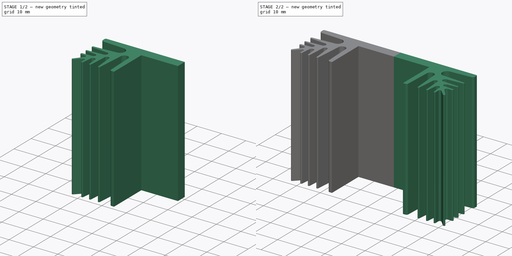
[diagram: build sequence overview — one tinted view per stage of 2, left to right]
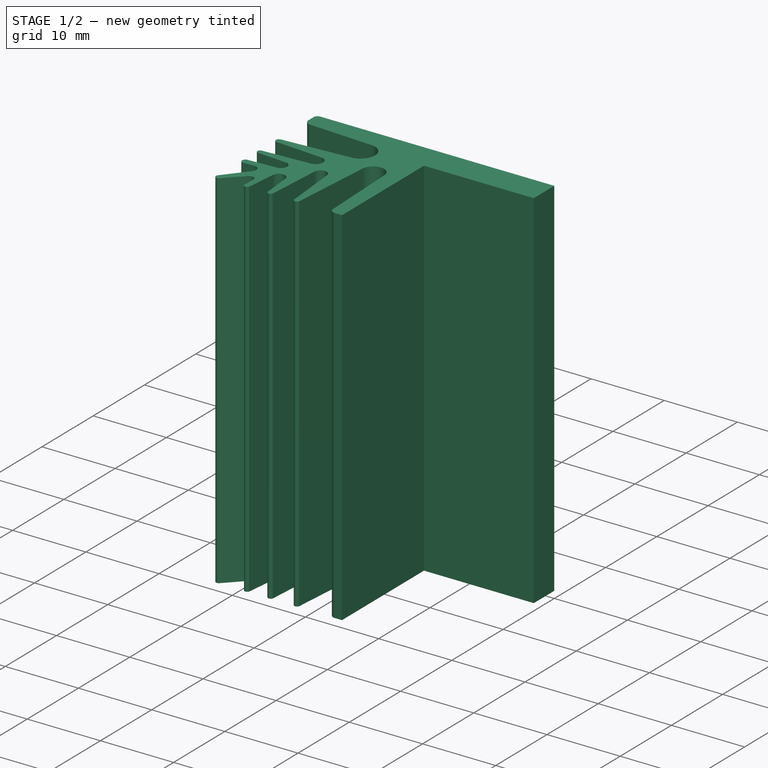
[diagram: stage 1 of 2 — iso view after this stage's code; geometry added in this stage tinted green]
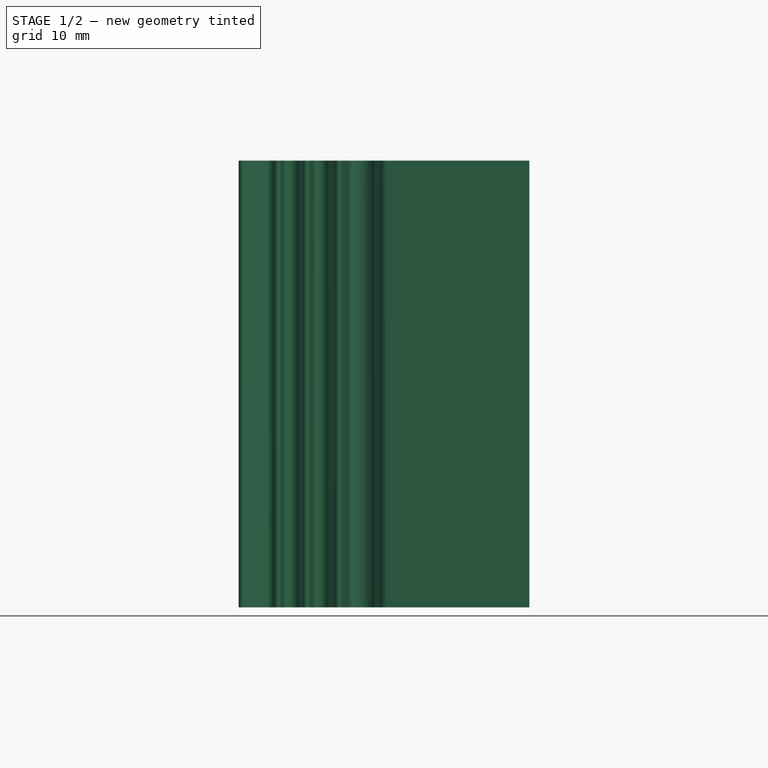
[diagram: stage 1 of 2 — front view after this stage's code; geometry added in this stage tinted green]
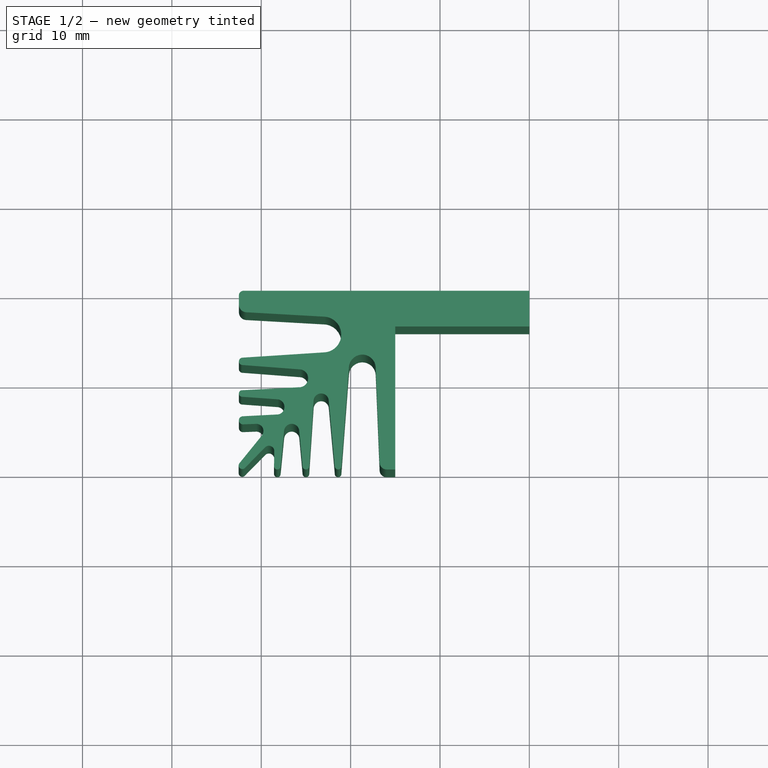
[diagram: stage 1 of 2 — top view after this stage's code; geometry added in this stage tinted green]
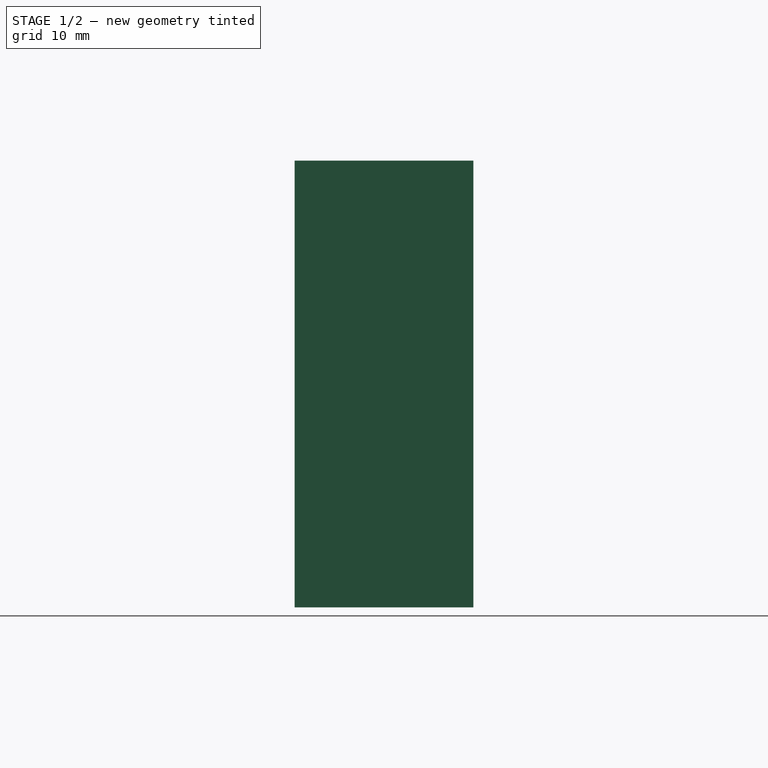
[diagram: stage 1 of 2 — right view after this stage's code; geometry added in this stage tinted green]
FCSTD DOCUMENT  (FreeCAD 0.16R6712 (Git))
Label: SK48-50-SA-3
License: All rights reserved
LicenseURL: http://en.wikipedia.org/wiki/All_rights_reserved
objects: Image::ImagePlane×1, Sketcher::SketchObject×1, PartDesign::Pad×1, PartDesign::Mirrored×1
note: 4 computed .brp shape members not serialized (recipe doc carries the construction recipe); baked Part::Feature solids carry a one-line shape summary decoded from their .brp

FEATURE [Image::ImagePlane] ImagePlane
  Placement = pos=(0,-10,0) rot=(0,0,1;3.14159rad)
  XSize = 65
  YSize = 20
FEATURE [Sketcher::SketchObject] Sketch
  sketch-geometry (50):
    g0: LineSegment [constr] StartX=-32.5 StartY=-20 StartZ=0 EndX=0 EndY=-20 EndZ=0
    g1: GeomPoint [constr] X=-32.5 Y=-14.5 Z=0
    g2: GeomPoint [constr] X=-32.5 Y=-11.5 Z=0
    g3: GeomPoint [constr] X=-32.5 Y=-7.9 Z=0
    g4: GeomPoint [constr] X=-28.2 Y=-20 Z=0
    g5: GeomPoint [constr] X=-25 Y=-20 Z=0
    g6: GeomPoint [constr] X=-21.4 Y=-20 Z=0
    g7: GeomPoint [constr] X=-15 Y=-20 Z=0
    g8: LineSegment StartX=0 StartY=0 StartZ=0 EndX=0 EndY=-4 EndZ=0
    g9: LineSegment StartX=0 StartY=-4 StartZ=0 EndX=-15 EndY=-4 EndZ=0
    g10: LineSegment StartX=-15 StartY=-4 StartZ=0 EndX=-15 EndY=-20 EndZ=0
    g11: ArcOfCircle CenterX=-18.69 CenterY=-8.64822 CenterZ=0 NormalX=0 NormalY=0 NormalZ=1 Radius=1.5 StartAngle=0.0405858 EndAngle=3.06575
    g12: ArcOfCircle CenterX=-23.29 CenterY=-12.3482 CenterZ=0 NormalX=0 NormalY=0 NormalZ=1 Radius=0.85 StartAngle=0.0910494 EndAngle=3.07533
    g13: ArcOfCircle CenterX=-26.59 CenterY=-15.7482 CenterZ=0 NormalX=0 NormalY=0 NormalZ=1 Radius=0.85 StartAngle=0.0927035 EndAngle=3.04332
    g14: ArcOfCircle CenterX=-29.14 CenterY=-17.9482 CenterZ=0 NormalX=0 NormalY=0 NormalZ=1 Radius=0.6 StartAngle=6.26421 EndAngle=8.64911
    g15: ArcOfCircle CenterX=-30.55 CenterY=-15.6982 CenterZ=0 NormalX=0 NormalY=0 NormalZ=1 Radius=0.8 StartAngle=5.60683 EndAngle=7.8895
    g16: ArcOfCircle CenterX=-28.25 CenterY=-12.9982 CenterZ=0 NormalX=0 NormalY=0 NormalZ=1 Radius=0.85 StartAngle=4.76436 EndAngle=7.78221
    g17: ArcOfCircle CenterX=-25.75 CenterY=-9.79822 CenterZ=0 NormalX=0 NormalY=0 NormalZ=1 Radius=1 StartAngle=4.76467 EndAngle=7.77804
    g18: ArcOfCircle CenterX=-23.05 CenterY=-4.89822 CenterZ=0 NormalX=0 NormalY=0 NormalZ=1 Radius=2 StartAngle=4.77701 EndAngle=7.79755
    g19: LineSegment StartX=-15 StartY=-20 StartZ=0 EndX=-15.9627 EndY=-20 EndZ=0
    g20: LineSegment StartX=-16.7588 StartY=-19.2355 StartZ=0 EndX=-17.1912 EndY=-8.58736 EndZ=0
    g21: ArcOfCircle CenterX=-15.9627 CenterY=-19.2032 CenterZ=0 NormalX=0 NormalY=0 NormalZ=1 Radius=0.796787 StartAngle=3.18218 EndAngle=4.71239
    g22: LineSegment StartX=-21.031 StartY=-19.658 StartZ=0 EndX=-20.1857 EndY=-8.53456 EndZ=0
    g23: LineSegment StartX=-21.7686 StartY=-19.6636 StartZ=0 EndX=-22.4435 EndY=-12.2709 EndZ=0
    g24: ArcOfCircle CenterX=-21.4 CenterY=-19.6299 CenterZ=0 NormalX=0 NormalY=0 NormalZ=1 Radius=0.370093 StartAngle=3.23264 EndAngle=6.20734
    g25: LineSegment StartX=-24.6264 StartY=-19.6504 StartZ=0 EndX=-24.1381 EndY=-12.2919 EndZ=0
    g26: LineSegment StartX=-25.3728 StartY=-19.6602 StartZ=0 EndX=-25.7436 EndY=-15.6695 EndZ=0
    g27: ArcOfCircle CenterX=-25 CenterY=-19.6256 CenterZ=0 NormalX=0 NormalY=0 NormalZ=1 Radius=0.374404 StartAngle=3.23426 EndAngle=6.21693
    g28: LineSegment StartX=-27.8301 StartY=-19.6647 StartZ=0 EndX=-27.4359 EndY=-15.6648 EndZ=0
    g29: LineSegment StartX=-28.5716 StartY=-19.6212 StartZ=0 EndX=-28.5401 EndY=-17.9596 EndZ=0
    g30: ArcOfCircle CenterX=-28.2 CenterY=-19.6283 CenterZ=0 NormalX=0 NormalY=0 NormalZ=1 Radius=0.371708 StartAngle=3.12262 EndAngle=6.18495
    g31: LineSegment StartX=-31.8301 StartY=-19.8343 StartZ=0 EndX=-29.5684 EndY=-17.5281 EndZ=0
    g32: LineSegment StartX=-32.4354 StartY=-19.2943 StartZ=0 EndX=-29.9261 EndY=-16.199 EndZ=0
    g33: LineSegment StartX=-32.0309 StartY=-14.9522 StartZ=0 EndX=-30.5784 EndY=-14.8987 EndZ=0
    g34: LineSegment StartX=-32.071 StartY=-14.0481 StartZ=0 EndX=-28.2058 EndY=-13.8471 EndZ=0
    g35: LineSegment StartX=-32.1604 StartY=-11.8649 StartZ=0 EndX=-28.189 EndY=-12.1504 EndZ=0
    g36: LineSegment StartX=-32.1533 StartY=-11.1347 StartZ=0 EndX=-25.6977 EndY=-10.7969 EndZ=0
    g37: LineSegment StartX=-32.1194 StartY=-8.31069 StartZ=0 EndX=-25.6741 EndY=-8.80111 EndZ=0
    g38: LineSegment StartX=-32.1147 StartY=-7.48899 StartZ=0 EndX=-22.9208 EndY=-6.89405 EndZ=0
    g39: LineSegment StartX=-31.6837 StartY=-2.40726 StartZ=0 EndX=-22.9372 EndY=-2.90141 EndZ=0
    g40: LineSegment StartX=-32.5 StartY=-1.54358 StartZ=0 EndX=-32.5 EndY=-0.517038 EndZ=0
    g41: LineSegment StartX=-31.983 StartY=0 StartZ=0 EndX=0 EndY=0 EndZ=0
    g42: LineSegment [constr] StartX=-32.5 StartY=-7.9 StartZ=0 EndX=-32.5 EndY=-20 EndZ=0
    g43: ArcOfCircle CenterX=-32.12 CenterY=-19.55 CenterZ=0 NormalX=0 NormalY=0 NormalZ=1 Radius=0.406041 StartAngle=2.46037 EndAngle=5.50752
    g44: ArcOfCircle CenterX=-32.0475 CenterY=-14.5 CenterZ=0 NormalX=0 NormalY=0 NormalZ=1 Radius=0.452465 StartAngle=1.62277 EndAngle=4.74916
    g45: ArcOfCircle CenterX=-32.1342 CenterY=-11.5 CenterZ=0 NormalX=0 NormalY=0 NormalZ=1 Radius=0.365846 StartAngle=1.62308 EndAngle=4.64062
    g46: ArcOfCircle CenterX=-32.0881 CenterY=-7.9 CenterZ=0 NormalX=0 NormalY=0 NormalZ=1 Radius=0.411874 StartAngle=1.63542 EndAngle=4.63645
    g47: ArcOfCircle CenterX=-31.6349 CenterY=-1.54358 CenterZ=0 NormalX=0 NormalY=0 NormalZ=1 Radius=0.865054 StartAngle=3.14159 EndAngle=4.65595
    g48: ArcOfCircle CenterX=-31.983 CenterY=-0.517038 CenterZ=0 NormalX=0 NormalY=0 NormalZ=1 Radius=0.517038 StartAngle=1.5708 EndAngle=3.14159
    g49: LineSegment [constr] StartX=-32.5 StartY=-1.54358 StartZ=0 EndX=-32.5 EndY=-7.9 EndZ=0
  constraints (120):
    c: Horizontal(g0)
    c: DistanceX(g0,g0) = 32.5
    c: PointOnObject(g4,g0)
    c: PointOnObject(g5,g0)
    c: PointOnObject(g6,g0)
    c: PointOnObject(g7,g0)
    c: DistanceX(g7,g0) = 15
    c: DistanceX(g6,g0) = 21.4
    c: DistanceX(g5,g0) = 25
    c: DistanceX(g4,g0) = 28.2
    c: Coincident(g-1,g8)
    c: Vertical(g8)
    c: Coincident(g8,g9)
    c: Horizontal(g9)
    c: Coincident(g9,g10)
    c: Coincident(g10,g7)
    c: Vertical(g10)
    c: DistanceY(g8,g8) = 4
    c: Radius(g11) = 1.5
    c: Radius(g15) = 0.8
    c: Radius(g14) = 0.6
    c: Radius(g13) = 0.85
    c: Radius(g12) = 0.85
    c: Radius(g18) = 2
    c: Radius(g17) = 1
    c: Radius(g16) = 0.85
    c: DistanceX(g18,g11) = 4.36
    c: DistanceY(g11,g18) = 3.75
    c: DistanceY(g17,g18) = 4.9
    c: DistanceX(g17,g18) = 2.7
    c: DistanceX(g12,g11) = 4.6
    c: DistanceY(g12,g11) = 3.7
    c: DistanceY(g16,g17) = 3.2
    c: DistanceX(g16,g17) = 2.5
    c: DistanceY(g13,g12) = 3.4
    c: DistanceX(g13,g12) = 3.3
    c: DistanceX(g15,g16) = 2.3
    c: DistanceY(g15,g16) = 2.7
    c: DistanceY(g14,g13) = 2.2
    c: DistanceX(g14,g13) = 2.55
    c: Coincident(g19,g7)
    c: Tangent(g20,g11)
    c: Tangent(g19,g21) = 1.5708
    c: Tangent(g20,g21) = 1.5708
    c: Tangent(g22,g11)
    c: Tangent(g23,g12)
    c: Tangent(g23,g24) = 1.5708
    c: Tangent(g22,g24) = -1.5708
    c: PointOnObject(g6,g24)
    c: DistanceX(g24,g6) = 0
    c: Tangent(g25,g12)
    c: Tangent(g26,g27) = 1.5708
    c: Tangent(g25,g27) = -1.5708
    c: DistanceX(g27,g5) = 0
    c: PointOnObject(g5,g27)
    c: Tangent(g29,g14)
    c: Tangent(g29,g30) = 1.5708
    c: Tangent(g28,g30) = -1.5708
    c: DistanceX(g30,g4) = 0
    c: PointOnObject(g4,g30)
    c: Tangent(g31,g14)
    c: Tangent(g34,g16)
    c: Tangent(g35,g16)
    c: Tangent(g36,g17)
    c: Tangent(g37,g17)
    c: Tangent(g38,g18)
    c: Tangent(g39,g18)
    c: Coincident(g41,g-1)
    c: Coincident(g42,g3)
    c: Vertical(g42)
    c: PointOnObject(g2,g42)
    c: PointOnObject(g1,g42)
    c: Coincident(g42,g0)
    c: DistanceX(g3,g-1) = 32.5
    c: Vertical(g40)
    c: Tangent(g31,g43) = -1.5708
    c: Tangent(g32,g43) = 1.5708
    c: Tangent(g33,g44) = -1.5708
    c: Tangent(g34,g44) = 1.5708
    c: Tangent(g35,g45) = -1.5708
    c: Tangent(g36,g45) = 1.5708
    c: Tangent(g37,g46) = -1.5708
    c: Tangent(g38,g46) = 1.5708
    c: Tangent(g39,g47) = -1.5708
    c: Tangent(g40,g47) = 1.5708
    c: PointOnObject(g3,g46)
    c: PointOnObject(g2,g45)
    c: PointOnObject(g1,g44)
    c: DistanceX(g0,g43) = 0.38
    c: DistanceY(g0,g43) = 0.45
    c: DistanceY(g44,g1) = 0
    c: DistanceY(g2,g45) = 0
    c: DistanceY(g46,g3) = 0
    c: Coincident(g18,g38)
    c: Coincident(g18,g39)
    c: Coincident(g17,g36)
    c: Coincident(g17,g37)
    c: Coincident(g12,g23)
    c: Coincident(g12,g25)
    c: Coincident(g16,g34)
    c: Coincident(g16,g35)
    c: Coincident(g14,g29)
    c: Coincident(g14,g31)
    c: Coincident(g11,g20)
    c: Coincident(g11,g22)
    c: Coincident(g15,g32)
    c: Coincident(g15,g33)
    c: Coincident(g13,g26)
    c: Coincident(g13,g28)
    c: PointOnObject(g19,g0)
    c: Tangent(g40,g48) = 1.5708
    c: Tangent(g41,g48) = 1.5708
    c: DistanceY(g3,g-1) = 7.9
    c: DistanceY(g2,g3) = 3.6
    c: DistanceY(g1,g2) = 3
    c: DistanceY(g0,g1) = 5.5
    c: Coincident(g49,g3)
    c: Coincident(g40,g49)
    c: Vertical(g49)
    c: Horizontal(g41)
FEATURE [PartDesign::Pad] Pad
  Length = 50
  Length2 = 100
  Sketch = -> Sketch
  Type = 0
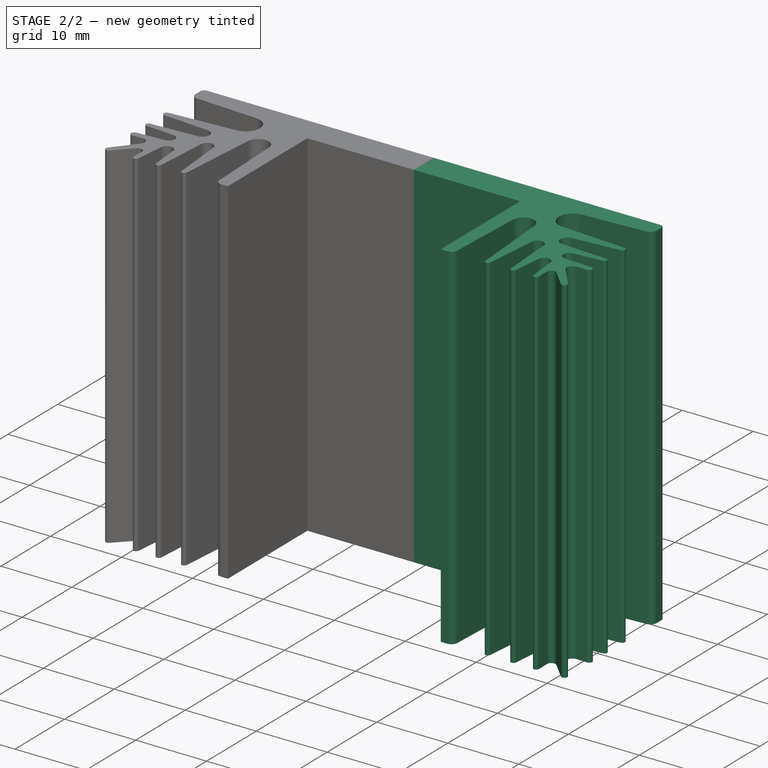
[diagram: stage 2 of 2 — iso view after this stage's code; geometry added in this stage tinted green]
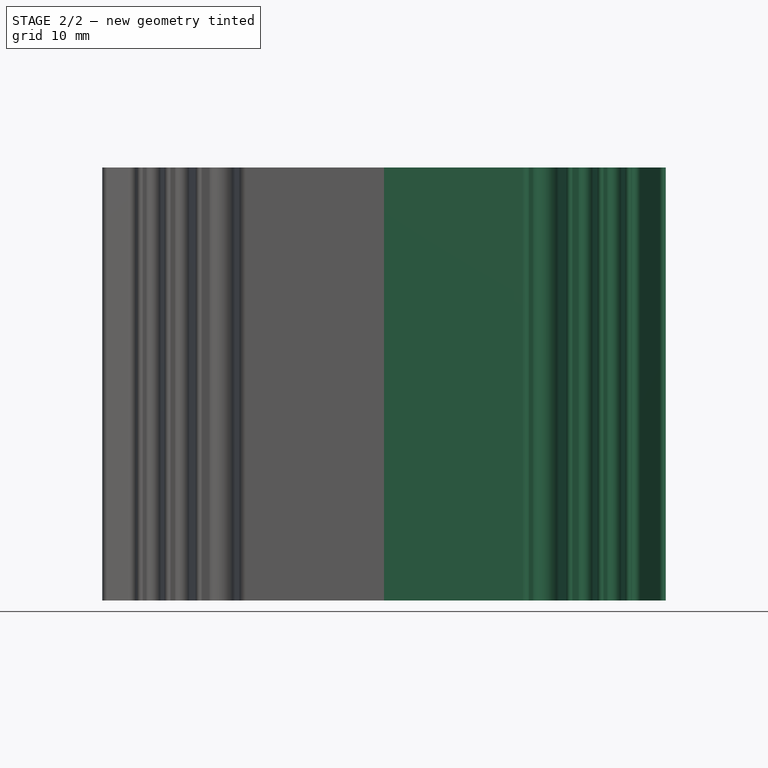
[diagram: stage 2 of 2 — front view after this stage's code; geometry added in this stage tinted green]
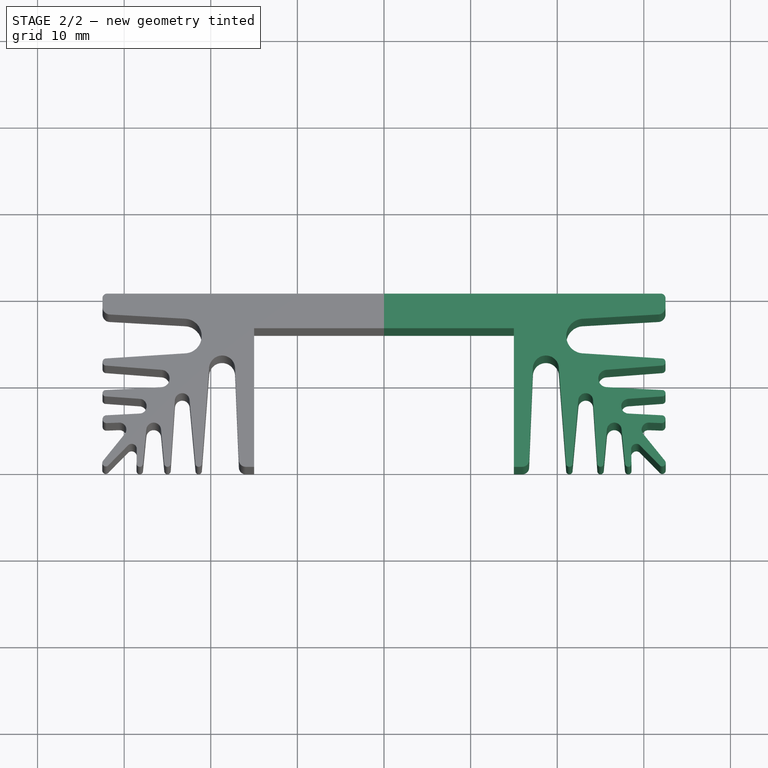
[diagram: stage 2 of 2 — top view after this stage's code; geometry added in this stage tinted green]
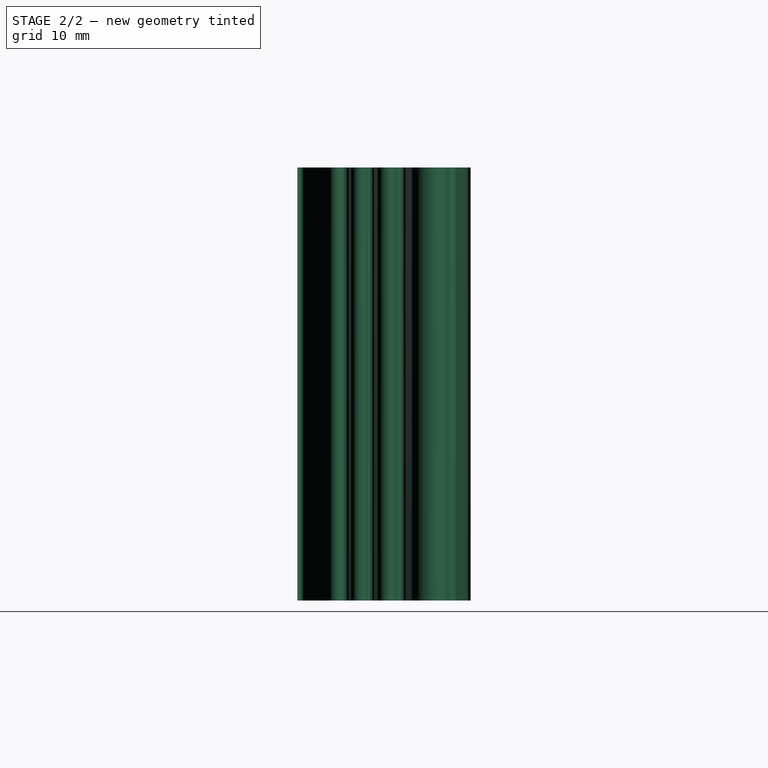
[diagram: stage 2 of 2 — right view after this stage's code; geometry added in this stage tinted green]
FEATURE [PartDesign::Mirrored] Mirrored
  MirrorPlane = -> Sketch [V_Axis]
  Originals = -> [Pad]
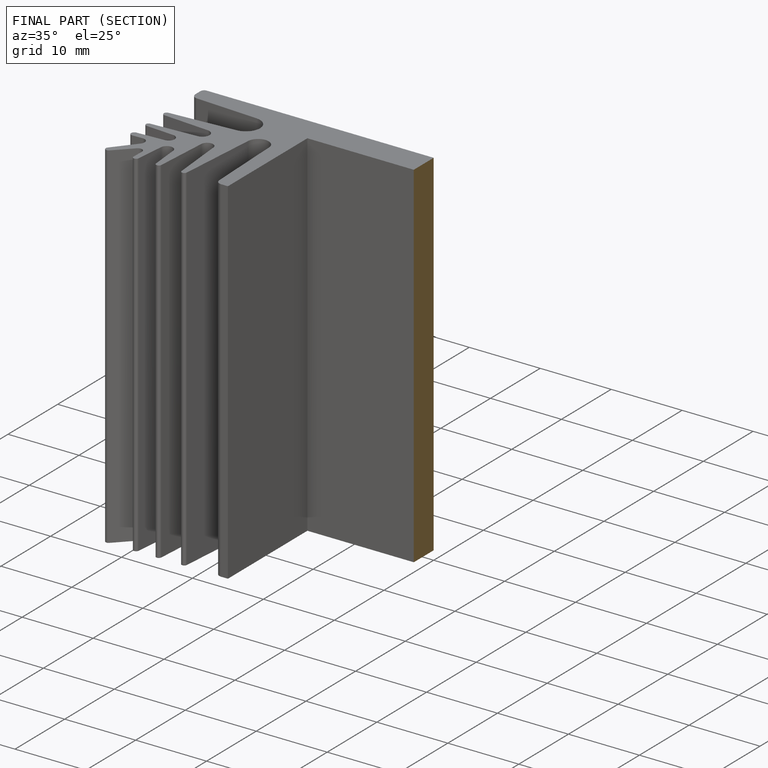
[diagram: finished part — half-section view (interior)]
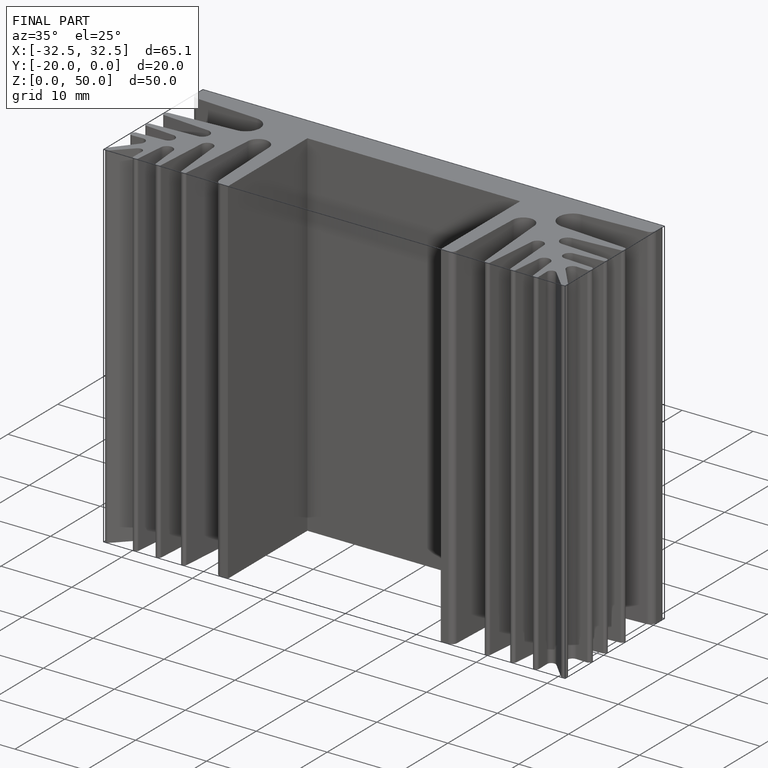
[diagram: finished part — iso view with bounding-box wireframe]
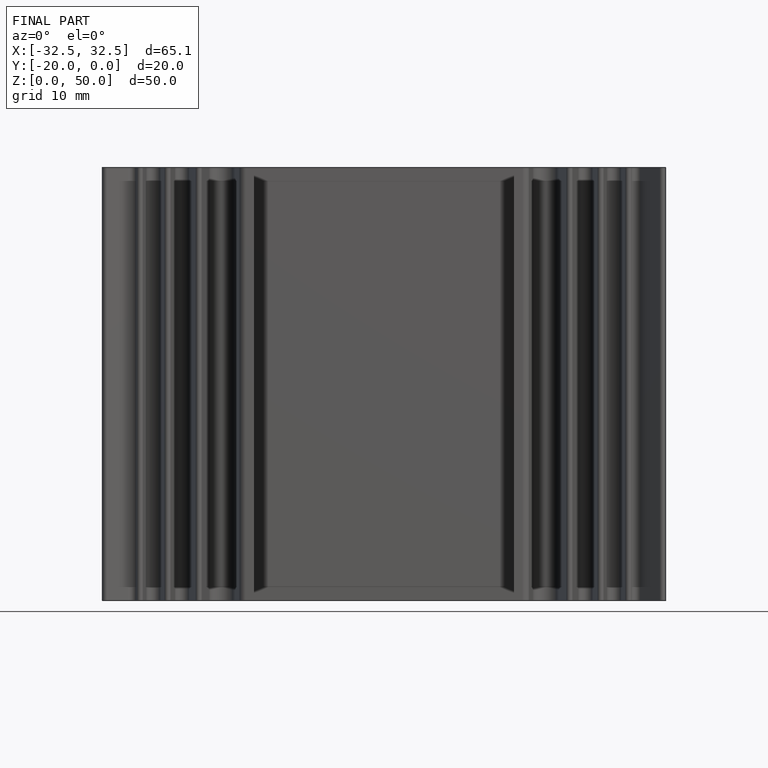
[diagram: finished part — front view with bounding-box wireframe]
